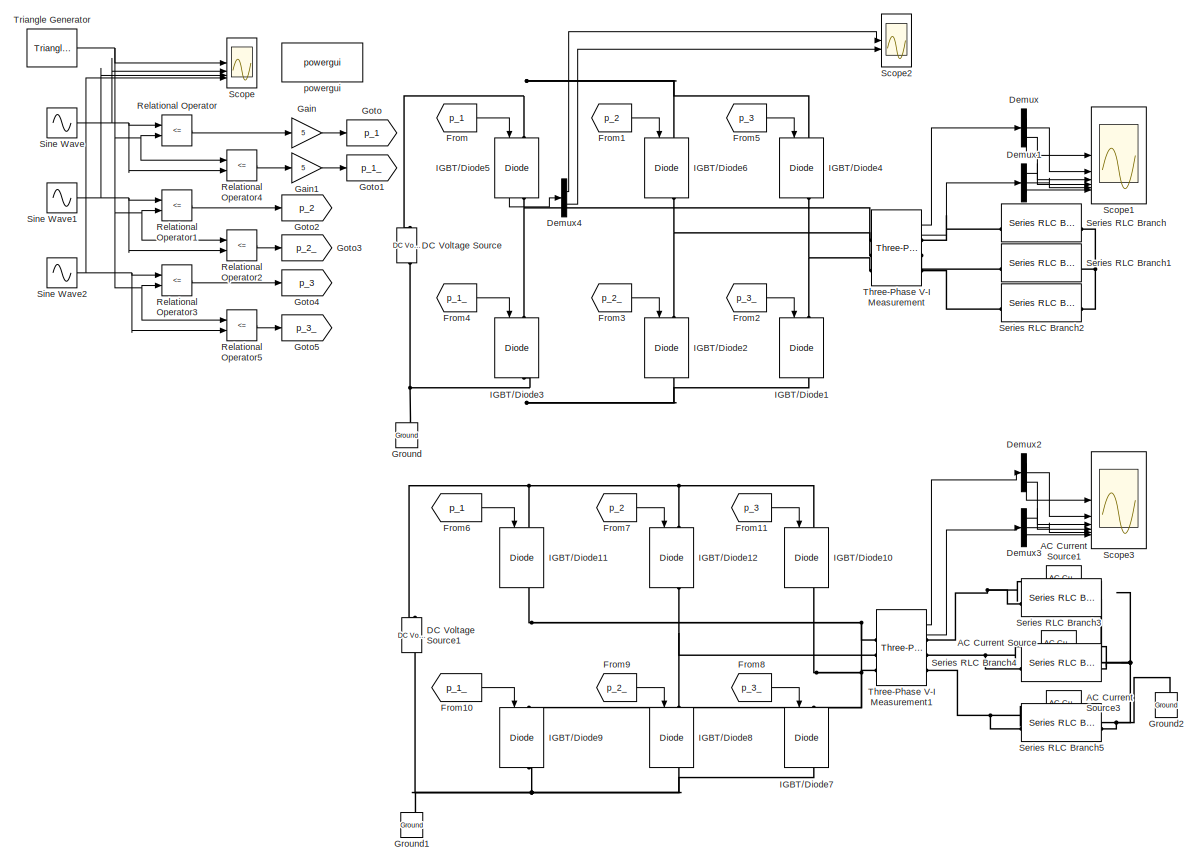
[diagram: root canvas - part 1/2, left side, full height]
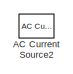
[diagram: root canvas - part 2/2, middle right region]
MODEL slx_4cd07faff22f
KIND model
CONFIG AbsTol = auto
CONFIG EnableMultiTasking = off
CONFIG FixedStep = auto
CONFIG MaxStep = auto
CONFIG MinStep = auto
CONFIG RelTol = 1e-3
CONFIG SampleTimeConstraint = Unconstrained
CONFIG SolverName = VariableStepAuto
CONFIG StartTime = 0.0
CONFIG StopTime = 0.1
BLOCK [Reference] AC Current Source  REF=spsACCurrentSourceLib/AC Current Source
  LibrarySourceBlock = sps_lib/Sources/AC Current Source
  NameLocation = left
  SourceBlock = spsACCurrentSourceLib/AC Current Source
  SourceType = AC Current Source
BLOCK [Reference] AC Current Source1  REF=spsACCurrentSourceLib/AC Current Source
  LibrarySourceBlock = sps_lib/Sources/AC Current Source
  NameLocation = left
  SourceBlock = spsACCurrentSourceLib/AC Current Source
  SourceType = AC Current Source
BLOCK [Reference] AC Current Source2  REF=spsACCurrentSourceLib/AC Current Source
  LibrarySourceBlock = sps_lib/Sources/AC Current Source
  NameLocation = left
  SourceBlock = spsACCurrentSourceLib/AC Current Source
  SourceType = AC Current Source
BLOCK [Reference] AC Current Source3  REF=spsACCurrentSourceLib/AC Current Source
  LibrarySourceBlock = sps_lib/Sources/AC Current Source
  NameLocation = left
  SourceBlock = spsACCurrentSourceLib/AC Current Source
  SourceType = AC Current Source
BLOCK [Reference] DC Voltage Source  REF=spsDCVoltageSourceLib/DC Voltage Source
  LibrarySourceBlock = sps_lib/Sources/DC Voltage Source
  SourceBlock = spsDCVoltageSourceLib/DC Voltage Source
  SourceType = DC Voltage Source
BLOCK [Reference] DC Voltage Source1  REF=spsDCVoltageSourceLib/DC Voltage Source
  LibrarySourceBlock = sps_lib/Sources/DC Voltage Source
  SourceBlock = spsDCVoltageSourceLib/DC Voltage Source
  SourceType = DC Voltage Source
BLOCK [Demux] Demux
  Outputs = 3
BLOCK [Demux] Demux1
  Outputs = 3
BLOCK [Demux] Demux2
  Outputs = 3
BLOCK [Demux] Demux3
  Outputs = 3
BLOCK [Demux] Demux4
  Outputs = 2
BLOCK [From] From
  GotoTag = p_1
BLOCK [From] From1
  GotoTag = p_2
BLOCK [From] From10
  GotoTag = p_1_
BLOCK [From] From11
  GotoTag = p_3
BLOCK [From] From2
  GotoTag = p_3_
BLOCK [From] From3
  GotoTag = p_2_
BLOCK [From] From4
  GotoTag = p_1_
BLOCK [From] From5
  GotoTag = p_3
BLOCK [From] From6
  GotoTag = p_1
BLOCK [From] From7
  GotoTag = p_2
BLOCK [From] From8
  GotoTag = p_3_
BLOCK [From] From9
  GotoTag = p_2_
BLOCK [Gain] Gain
  Gain = 5
BLOCK [Gain] Gain1
  Gain = 5
BLOCK [Goto] Goto
  GotoTag = p_1
BLOCK [Goto] Goto1
  GotoTag = p_1_
BLOCK [Goto] Goto2
  GotoTag = p_2
BLOCK [Goto] Goto3
  GotoTag = p_2_
BLOCK [Goto] Goto4
  GotoTag = p_3
BLOCK [Goto] Goto5
  GotoTag = p_3_
BLOCK [Reference] Ground  REF=spsGroundLib/Ground
  LibrarySourceBlock = sps_lib/Utilities/Ground
  NameLocation = right
  SourceBlock = spsGroundLib/Ground
  SourceType = Ground
BLOCK [Reference] Ground1  REF=spsGroundLib/Ground
  LibrarySourceBlock = sps_lib/Utilities/Ground
  NameLocation = right
  SourceBlock = spsGroundLib/Ground
  SourceType = Ground
BLOCK [Reference] Ground2  REF=spsGroundLib/Ground
  LibrarySourceBlock = sps_lib/Utilities/Ground
  NameLocation = right
  SourceBlock = spsGroundLib/Ground
  SourceType = Ground
BLOCK [Reference] IGBT//Diode1  REF=spsIGBTDiodeLib/IGBT//Diode
  LibrarySourceBlock = sps_lib/Power Electronics/IGBT//Diode
  NameLocation = left
  SourceBlock = spsIGBTDiodeLib/IGBT//Diode
  SourceType = IGBT/Diode
BLOCK [Reference] IGBT//Diode10  REF=spsIGBTDiodeLib/IGBT//Diode
  LibrarySourceBlock = sps_lib/Power Electronics/IGBT//Diode
  NameLocation = left
  SourceBlock = spsIGBTDiodeLib/IGBT//Diode
  SourceType = IGBT/Diode
BLOCK [Reference] IGBT//Diode11  REF=spsIGBTDiodeLib/IGBT//Diode
  LibrarySourceBlock = sps_lib/Power Electronics/IGBT//Diode
  NameLocation = left
  SourceBlock = spsIGBTDiodeLib/IGBT//Diode
  SourceType = IGBT/Diode
BLOCK [Reference] IGBT//Diode12  REF=spsIGBTDiodeLib/IGBT//Diode
  LibrarySourceBlock = sps_lib/Power Electronics/IGBT//Diode
  NameLocation = left
  SourceBlock = spsIGBTDiodeLib/IGBT//Diode
  SourceType = IGBT/Diode
BLOCK [Reference] IGBT//Diode2  REF=spsIGBTDiodeLib/IGBT//Diode
  LibrarySourceBlock = sps_lib/Power Electronics/IGBT//Diode
  NameLocation = left
  SourceBlock = spsIGBTDiodeLib/IGBT//Diode
  SourceType = IGBT/Diode
BLOCK [Reference] IGBT//Diode3  REF=spsIGBTDiodeLib/IGBT//Diode
  LibrarySourceBlock = sps_lib/Power Electronics/IGBT//Diode
  NameLocation = left
  SourceBlock = spsIGBTDiodeLib/IGBT//Diode
  SourceType = IGBT/Diode
BLOCK [Reference] IGBT//Diode4  REF=spsIGBTDiodeLib/IGBT//Diode
  LibrarySourceBlock = sps_lib/Power Electronics/IGBT//Diode
  NameLocation = left
  SourceBlock = spsIGBTDiodeLib/IGBT//Diode
  SourceType = IGBT/Diode
BLOCK [Reference] IGBT//Diode5  REF=spsIGBTDiodeLib/IGBT//Diode
  LibrarySourceBlock = sps_lib/Power Electronics/IGBT//Diode
  NameLocation = left
  SourceBlock = spsIGBTDiodeLib/IGBT//Diode
  SourceType = IGBT/Diode
BLOCK [Reference] IGBT//Diode6  REF=spsIGBTDiodeLib/IGBT//Diode
  LibrarySourceBlock = sps_lib/Power Electronics/IGBT//Diode
  NameLocation = left
  SourceBlock = spsIGBTDiodeLib/IGBT//Diode
  SourceType = IGBT/Diode
BLOCK [Reference] IGBT//Diode7  REF=spsIGBTDiodeLib/IGBT//Diode
  LibrarySourceBlock = sps_lib/Power Electronics/IGBT//Diode
  NameLocation = left
  SourceBlock = spsIGBTDiodeLib/IGBT//Diode
  SourceType = IGBT/Diode
BLOCK [Reference] IGBT//Diode8  REF=spsIGBTDiodeLib/IGBT//Diode
  LibrarySourceBlock = sps_lib/Power Electronics/IGBT//Diode
  NameLocation = left
  SourceBlock = spsIGBTDiodeLib/IGBT//Diode
  SourceType = IGBT/Diode
BLOCK [Reference] IGBT//Diode9  REF=spsIGBTDiodeLib/IGBT//Diode
  LibrarySourceBlock = sps_lib/Power Electronics/IGBT//Diode
  NameLocation = left
  SourceBlock = spsIGBTDiodeLib/IGBT//Diode
  SourceType = IGBT/Diode
BLOCK [RelationalOperator] Relational Operator
  InputSameDT = off
  Operator = <=
  OutDataTypeStr = boolean
  RndMeth = Simplest
BLOCK [RelationalOperator] Relational Operator1
  InputSameDT = off
  Operator = <=
  OutDataTypeStr = boolean
  RndMeth = Simplest
BLOCK [RelationalOperator] Relational Operator2
  InputSameDT = off
  Operator = <=
  OutDataTypeStr = boolean
  RndMeth = Simplest
BLOCK [RelationalOperator] Relational Operator3
  InputSameDT = off
  Operator = <=
  OutDataTypeStr = boolean
  RndMeth = Simplest
BLOCK [RelationalOperator] Relational Operator4
  InputSameDT = off
  Operator = <=
  OutDataTypeStr = boolean
  RndMeth = Simplest
BLOCK [RelationalOperator] Relational Operator5
  InputSameDT = off
  Operator = <=
  OutDataTypeStr = boolean
  RndMeth = Simplest
BLOCK [Scope] Scope
  Floating = off
  NumInputPorts = 4
  ScopeSpecificationString = Simulink.scopes.TimeScopeBlockCfg('CurrentConfiguration', extmgr.ConfigurationSet(extmgr.Configuration('Core','General UI',true),extmgr.Configuration('Core','Source UI',true),extmgr.Configuration('Sources','WiredSimulink',true),extmgr.Configuration('Visuals','Time Domain',true,'SerializedDisplays',{struct('MinYLimReal','-1.25','MaxYLimReal','1.25','YLabelReal','','MinYLimMag','0.00000','MaxYLimMag...<+1947ch>
BLOCK [Scope] Scope1
  Floating = off
  NumInputPorts = 6
  ScopeSpecificationString = Simulink.scopes.TimeScopeBlockCfg('CurrentConfiguration', extmgr.ConfigurationSet(extmgr.Configuration('Core','General UI',true),extmgr.Configuration('Core','Source UI',true),extmgr.Configuration('Sources','WiredSimulink',true,'DataLoggingVariableName','ScopeData1'),extmgr.Configuration('Visuals','Time Domain',true,'SerializedDisplays',{struct('MinYLimReal','-39.10074','MaxYLimReal','350.2277','YL...<+4796ch>
BLOCK [Scope] Scope2
  Floating = off
  NumInputPorts = 2
  ScopeSpecificationString = Simulink.scopes.TimeScopeBlockCfg('CurrentConfiguration', extmgr.ConfigurationSet(extmgr.Configuration('Core','General UI',true),extmgr.Configuration('Core','Source UI',true),extmgr.Configuration('Sources','WiredSimulink',true,'DataLoggingVariableName','ScopeData2'),extmgr.Configuration('Visuals','Time Domain',true,'SerializedDisplays',{struct('MinYLimReal','-199.87437','MaxYLimReal','421.61372','...<+2076ch>
BLOCK [Scope] Scope3
  Floating = off
  NumInputPorts = 6
  ScopeSpecificationString = Simulink.scopes.TimeScopeBlockCfg('CurrentConfiguration', extmgr.ConfigurationSet(extmgr.Configuration('Core','General UI',true),extmgr.Configuration('Core','Source UI',true),extmgr.Configuration('Sources','WiredSimulink',true,'DataLoggingVariableName','ScopeData3'),extmgr.Configuration('Visuals','Time Domain',true,'SerializedDisplays',{struct('MinYLimReal','-38.89712','MaxYLimReal','350.02407','Y...<+4789ch>
BLOCK [Reference] Series RLC Branch  REF=spsSeriesRLCBranchLib/Series RLC Branch
  LibrarySourceBlock = sps_lib/Passives/Series RLC Branch
  SourceBlock = spsSeriesRLCBranchLib/Series RLC Branch
  SourceType = Series RLC Branch
BLOCK [Reference] Series RLC Branch1  REF=spsSeriesRLCBranchLib/Series RLC Branch
  LibrarySourceBlock = sps_lib/Passives/Series RLC Branch
  SourceBlock = spsSeriesRLCBranchLib/Series RLC Branch
  SourceType = Series RLC Branch
BLOCK [Reference] Series RLC Branch2  REF=spsSeriesRLCBranchLib/Series RLC Branch
  LibrarySourceBlock = sps_lib/Passives/Series RLC Branch
  SourceBlock = spsSeriesRLCBranchLib/Series RLC Branch
  SourceType = Series RLC Branch
BLOCK [Reference] Series RLC Branch3  REF=spsSeriesRLCBranchLib/Series RLC Branch
  LibrarySourceBlock = sps_lib/Passives/Series RLC Branch
  SourceBlock = spsSeriesRLCBranchLib/Series RLC Branch
  SourceType = Series RLC Branch
BLOCK [Reference] Series RLC Branch4  REF=spsSeriesRLCBranchLib/Series RLC Branch
  LibrarySourceBlock = sps_lib/Passives/Series RLC Branch
  SourceBlock = spsSeriesRLCBranchLib/Series RLC Branch
  SourceType = Series RLC Branch
BLOCK [Reference] Series RLC Branch5  REF=spsSeriesRLCBranchLib/Series RLC Branch
  LibrarySourceBlock = sps_lib/Passives/Series RLC Branch
  SourceBlock = spsSeriesRLCBranchLib/Series RLC Branch
  SourceType = Series RLC Branch
BLOCK [Sin] Sine Wave
  Frequency = 50
  SampleTime = 0
BLOCK [Sin] Sine Wave1
  Frequency = 50
  Phase = 2*pi/3
  SampleTime = 0
BLOCK [Sin] Sine Wave2
  Frequency = 50
  Phase = 4*pi/3
  SampleTime = 0
BLOCK [Reference] Three-Phase V-I Measurement  REF=spsThreePhaseVIMeasurementLib/Three-Phase
V-I Measurement
  LibrarySourceBlock = sps_lib/Sensors and Measurements/Three-Phase\nV-I Measurement
  SourceBlock = spsThreePhaseVIMeasurementLib/Three-Phase\nV-I Measurement
  SourceType = Three-Phase VI Measurement
BLOCK [Reference] Three-Phase V-I Measurement1  REF=spsThreePhaseVIMeasurementLib/Three-Phase
V-I Measurement
  LibrarySourceBlock = sps_lib/Sensors and Measurements/Three-Phase\nV-I Measurement
  SourceBlock = spsThreePhaseVIMeasurementLib/Three-Phase\nV-I Measurement
  SourceType = Three-Phase VI Measurement
BLOCK [Reference] Triangle Generator  REF=spsTriangleGeneratorLib/Triangle
Generator
  LibrarySourceBlock = sps_lib/Sources/Signal Generator Sources/Triangle\nGenerator
  SourceBlock = spsTriangleGeneratorLib/Triangle\nGenerator
  SourceType = Triangle Generator
BLOCK [Reference] powergui  REF=sps_lib/powergui
  LibrarySourceBlock = sps_lib/powergui
  Priority = 1
  SourceBlock = sps_lib/powergui
  SourceType = PSB option menu block
LINE Demux1:1 -> Scope1:4
LINE Demux1:2 -> Scope1:5
LINE Demux1:3 -> Scope1:6
LINE Demux2:1 -> Scope3:1
LINE Demux2:2 -> Scope3:2
LINE Demux2:3 -> Scope3:3
LINE Demux3:1 -> Scope3:4
LINE Demux3:2 -> Scope3:5
LINE Demux3:3 -> Scope3:6
LINE Demux4:1 -> Scope2:1
LINE Demux4:2 -> Scope2:2
LINE Demux:1 -> Scope1:1
LINE Demux:2 -> Scope1:2
LINE Demux:3 -> Scope1:3
LINE From10:1 -> IGBT//Diode9:1
LINE From11:1 -> IGBT//Diode10:1
LINE From1:1 -> IGBT//Diode6:1
LINE From2:1 -> IGBT//Diode1:1
LINE From3:1 -> IGBT//Diode2:1
LINE From4:1 -> IGBT//Diode3:1
LINE From5:1 -> IGBT//Diode4:1
LINE From6:1 -> IGBT//Diode11:1
LINE From7:1 -> IGBT//Diode12:1
LINE From8:1 -> IGBT//Diode7:1
LINE From9:1 -> IGBT//Diode8:1
LINE From:1 -> IGBT//Diode5:1
LINE Gain1:1 -> Goto1:1
LINE Gain:1 -> Goto:1
LINE IGBT//Diode5:1 -> Demux4:1
LINE Relational Operator1:1 -> Goto2:1
LINE Relational Operator2:1 -> Goto3:1
LINE Relational Operator3:1 -> Goto4:1
LINE Relational Operator4:1 -> Gain1:1
LINE Relational Operator5:1 -> Goto5:1
LINE Relational Operator:1 -> Gain:1
NET Sine Wave1:1 -> Relational Operator1:1, Relational Operator2:2, Scope:3
NET Sine Wave2:1 -> Relational Operator3:1, Relational Operator5:2, Scope:4
NET Sine Wave:1 -> Relational Operator4:2, Relational Operator:1, Scope:2
LINE Three-Phase V-I Measurement1:1 -> Demux2:1
LINE Three-Phase V-I Measurement1:2 -> Demux3:1
LINE Three-Phase V-I Measurement:1 -> Demux:1
LINE Three-Phase V-I Measurement:2 -> Demux1:1
NET Triangle Generator:1 -> Relational Operator1:2, Relational Operator2:1, Relational Operator3:2, Relational Operator4:1, Relational Operator5:1, Relational Operator:2, Scope:1
PNET net1: AC Current Source1:LConn1 -- Series RLC Branch3:LConn1 -- Three-Phase V-I Measurement1:RConn1
PNET net2: AC Current Source1:RConn1 -- AC Current Source3:RConn1 -- AC Current Source:RConn1 -- Ground2:LConn1 -- Series RLC Branch3:RConn1 -- Series RLC Branch4:RConn1 -- Series RLC Branch5:RConn1
PNET net3: AC Current Source3:LConn1 -- Series RLC Branch5:LConn1 -- Three-Phase V-I Measurement1:RConn3
PNET net4: AC Current Source:LConn1 -- Series RLC Branch4:LConn1 -- Three-Phase V-I Measurement1:RConn2
PNET net5: DC Voltage Source1:LConn1 -- Ground1:LConn1 -- IGBT//Diode7:RConn1 -- IGBT//Diode8:RConn1 -- IGBT//Diode9:RConn1
PNET net6: DC Voltage Source1:RConn1 -- IGBT//Diode10:LConn1 -- IGBT//Diode11:LConn1 -- IGBT//Diode12:LConn1
PNET net7: DC Voltage Source:LConn1 -- Ground:LConn1 -- IGBT//Diode1:RConn1 -- IGBT//Diode2:RConn1 -- IGBT//Diode3:RConn1
PNET net8: DC Voltage Source:RConn1 -- IGBT//Diode4:LConn1 -- IGBT//Diode5:LConn1 -- IGBT//Diode6:LConn1
PNET net9: IGBT//Diode10:RConn1 -- IGBT//Diode7:LConn1 -- Three-Phase V-I Measurement1:LConn3
PNET net10: IGBT//Diode11:RConn1 -- IGBT//Diode9:LConn1 -- Three-Phase V-I Measurement1:LConn1
PNET net11: IGBT//Diode12:RConn1 -- IGBT//Diode8:LConn1 -- Three-Phase V-I Measurement1:LConn2
PNET net12: IGBT//Diode1:LConn1 -- IGBT//Diode4:RConn1 -- Three-Phase V-I Measurement:LConn3
PNET net13: IGBT//Diode2:LConn1 -- IGBT//Diode6:RConn1 -- Three-Phase V-I Measurement:LConn2
PNET net14: IGBT//Diode3:LConn1 -- IGBT//Diode5:RConn1 -- Three-Phase V-I Measurement:LConn1
PLINE Series RLC Branch1:LConn1 -- Three-Phase V-I Measurement:RConn2
PNET net15: Series RLC Branch1:RConn1 -- Series RLC Branch2:RConn1 -- Series RLC Branch:RConn1
PLINE Series RLC Branch2:LConn1 -- Three-Phase V-I Measurement:RConn3
PLINE Series RLC Branch:LConn1 -- Three-Phase V-I Measurement:RConn1
note: NET lines group one-source signal fan-out (src -> all destinations, sorted); 1:1 wires keep LINE; PNET lines group multi-terminal physical nets as a canonical sorted terminal list (undirected conserving connections); 2-terminal nets keep the pairwise PLINE form
